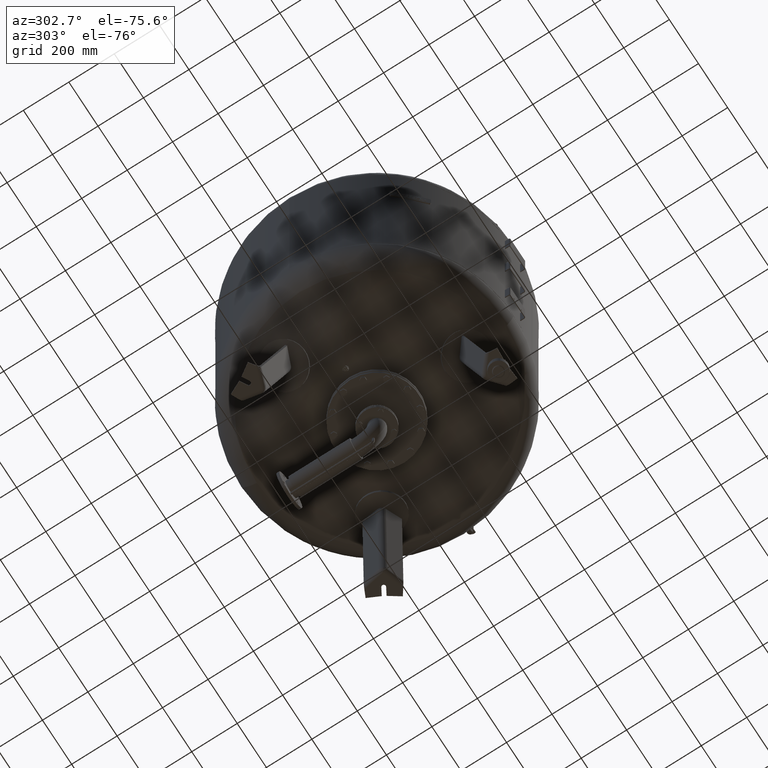
[diagram: clean part render]
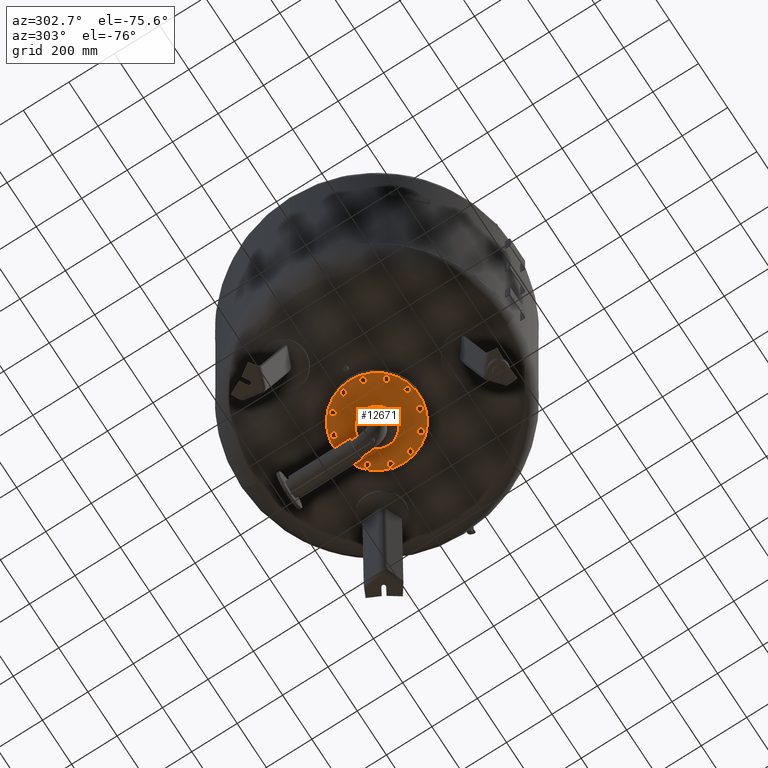
[diagram: same view with one face highlighted and labeled with its STEP entity id]
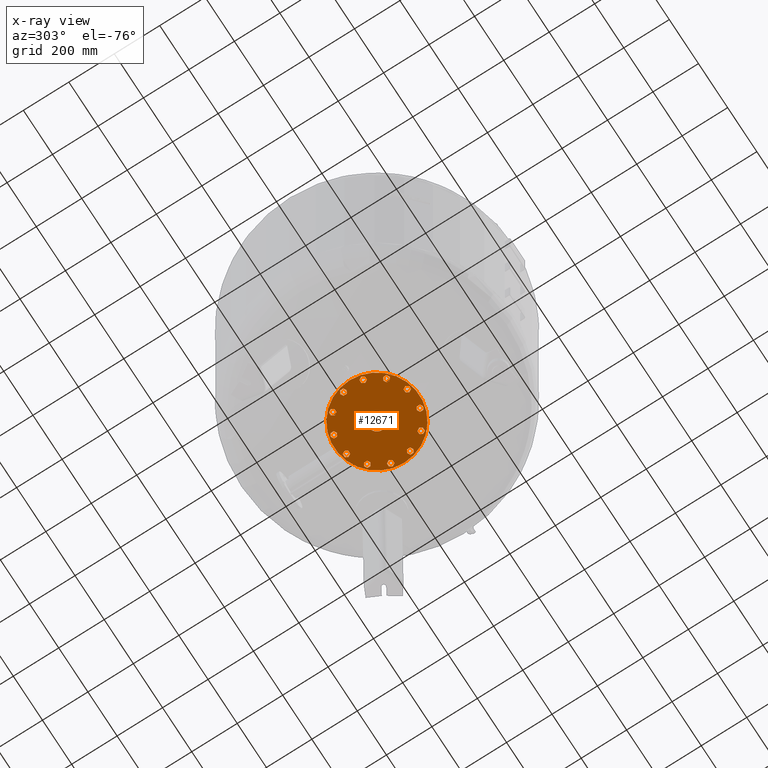
[diagram: x-ray of the same camera — body ghosted, the highlighted face saturated]
A machine part, auxiliary view. The second image highlights one B-rep face of the part: STEP entity #12671.
The next image is the same camera in x-ray: the body ghosted, the highlighted face saturated — about 0% of this face is hidden behind the body in this view.
In plain terms, the highlighted planar face has unit normal (0, 0, -1).
Its self-contained STEP definition (entity closure, byte-faithful):
#4815=CARTESIAN_POINT('',(-38.050000000000018,-4.163799E-015,383.0));
#4816=VERTEX_POINT('',#4815);
#4832=CARTESIAN_POINT('',(38.049999999999983,-8.823426E-015,383.0));
#4833=VERTEX_POINT('',#4832);
#4840=CARTESIAN_POINT('',(-8.604691E-015,-4.163799E-015,383.0));
#4841=DIRECTION('',(0.0,0.0,-1.0));
#4842=DIRECTION('',(-1.0,0.0,0.0));
#4843=AXIS2_PLACEMENT_3D('',#4840,#4841,#4842);
#4844=CIRCLE('',#4843,38.050000000000004);
#4845=EDGE_CURVE('',#4833,#4816,#4844,.T.);
#4855=CARTESIAN_POINT('',(-187.500000000000000,-4.163799E-015,383.000000000000110));
#4856=VERTEX_POINT('',#4855);
#4865=CARTESIAN_POINT('',(187.500000000000000,-2.712517E-014,383.000000000000110));
#4866=VERTEX_POINT('',#4865);
#4867=CARTESIAN_POINT('',(-8.604691E-015,-4.163799E-015,383.000000000000110));
#4868=DIRECTION('',(0.0,0.0,-1.0));
#4869=DIRECTION('',(-1.0,0.0,0.0));
#4870=AXIS2_PLACEMENT_3D('',#4867,#4868,#4869);
#4871=CIRCLE('',#4870,187.500000000000000);
#4872=EDGE_CURVE('',#4866,#4856,#4871,.T.);
#6845=CARTESIAN_POINT('',(43.352190054672320,-175.648982363969960,383.0));
#6846=VERTEX_POINT('',#6845);
#6847=CARTESIAN_POINT('',(55.352190054672313,-168.720779133694460,383.0));
#6848=VERTEX_POINT('',#6847);
#6849=CARTESIAN_POINT('',(43.352190054672320,-175.648982363969960,383.0));
#6850=DIRECTION('',(0.866025403784439,0.500000000000000,0.0));
#6851=VECTOR('',#6850,13.856406460551009);
#6852=LINE('',#6849,#6851);
#6853=EDGE_CURVE('',#6846,#6848,#6852,.T.);
#6885=CARTESIAN_POINT('',(31.352190054672334,-168.720779133694460,383.0));
#6886=VERTEX_POINT('',#6885);
#6887=CARTESIAN_POINT('',(31.352190054672334,-168.720779133694460,383.0));
#6888=DIRECTION('',(0.866025403784439,-0.500000000000000,0.0));
#6889=VECTOR('',#6888,13.856406460551002);
#6890=LINE('',#6887,#6889);
#6891=EDGE_CURVE('',#6886,#6846,#6890,.T.);
#6916=CARTESIAN_POINT('',(31.352190054672349,-154.864372673143440,383.0));
#6917=VERTEX_POINT('',#6916);
#6918=CARTESIAN_POINT('',(31.352190054672349,-154.864372673143440,383.0));
#6919=DIRECTION('',(0.0,-1.0,0.0));
#6920=VECTOR('',#6919,13.856406460551028);
#6921=LINE('',#6918,#6920);
#6922=EDGE_CURVE('',#6917,#6886,#6921,.T.);
#6947=CARTESIAN_POINT('',(43.352190054672320,-147.936169442867940,383.0));
#6948=VERTEX_POINT('',#6947);
#6949=CARTESIAN_POINT('',(43.352190054672320,-147.936169442867940,383.0));
#6950=DIRECTION('',(-0.866025403784438,-0.500000000000000,0.0));
#6951=VECTOR('',#6950,13.856406460550989);
#6952=LINE('',#6949,#6951);
#6953=EDGE_CURVE('',#6948,#6917,#6952,.T.);
#6978=CARTESIAN_POINT('',(55.352190054672313,-154.864372673143440,383.0));
#6979=VERTEX_POINT('',#6978);
#6980=CARTESIAN_POINT('',(55.352190054672313,-168.720779133694460,383.0));
#6981=DIRECTION('',(0.0,1.0,0.0));
#6982=VECTOR('',#6981,13.856406460551028);
#6983=LINE('',#6980,#6982);
#6984=EDGE_CURVE('',#6848,#6979,#6983,.T.);
#7009=CARTESIAN_POINT('',(55.352190054672313,-154.864372673143440,383.0));
#7010=DIRECTION('',(-0.866025403784439,0.500000000000000,0.0));
#7011=VECTOR('',#7010,13.856406460551009);
#7012=LINE('',#7009,#7011);
#7013=EDGE_CURVE('',#6979,#6948,#7012,.T.);
#7319=CARTESIAN_POINT('',(125.368589079022360,-130.440385848746640,383.0));
#7320=VERTEX_POINT('',#7319);
#7321=CARTESIAN_POINT('',(132.296792309297840,-118.440385848746640,383.0));
#7322=VERTEX_POINT('',#7321);
#7323=CARTESIAN_POINT('',(125.368589079022360,-130.440385848746640,383.0));
#7324=DIRECTION('',(0.499999999999999,0.866025403784439,0.0));
#7325=VECTOR('',#7324,13.856406460551007);
#7326=LINE('',#7323,#7325);
#7327=EDGE_CURVE('',#7320,#7322,#7326,.T.);
#7359=CARTESIAN_POINT('',(111.512182618471340,-130.440385848746640,383.0));
#7360=VERTEX_POINT('',#7359);
#7361=CARTESIAN_POINT('',(111.512182618471340,-130.440385848746640,383.0));
#7362=DIRECTION('',(1.0,0.0,0.0));
#7363=VECTOR('',#7362,13.856406460551014);
#7364=LINE('',#7361,#7363);
#7365=EDGE_CURVE('',#7360,#7320,#7364,.T.);
#7390=CARTESIAN_POINT('',(104.583979388195840,-118.440385848746660,383.0));
#7391=VERTEX_POINT('',#7390);
#7392=CARTESIAN_POINT('',(104.583979388195840,-118.440385848746660,383.0));
#7393=DIRECTION('',(0.500000000000000,-0.866025403784439,0.0));
#7394=VECTOR('',#7393,13.856406460551002);
#7395=LINE('',#7392,#7394);
#7396=EDGE_CURVE('',#7391,#7360,#7395,.T.);
#7421=CARTESIAN_POINT('',(111.512182618471340,-106.440385848746640,383.0));
#7422=VERTEX_POINT('',#7421);
#7423=CARTESIAN_POINT('',(111.512182618471340,-106.440385848746640,383.0));
#7424=DIRECTION('',(-0.499999999999999,-0.866025403784439,0.0));
#7425=VECTOR('',#7424,13.856406460551026);
#7426=LINE('',#7423,#7425);
#7427=EDGE_CURVE('',#7422,#7391,#7426,.T.);
#7452=CARTESIAN_POINT('',(125.368589079022340,-106.440385848746640,383.0));
#7453=VERTEX_POINT('',#7452);
#7454=CARTESIAN_POINT('',(132.296792309297840,-118.440385848746640,383.0));
#7455=DIRECTION('',(-0.500000000000000,0.866025403784439,0.0));
#7456=VECTOR('',#7455,13.856406460551014);
#7457=LINE('',#7454,#7456);
#7458=EDGE_CURVE('',#7322,#7453,#7457,.T.);
#7483=CARTESIAN_POINT('',(125.368589079022340,-106.440385848746640,383.0));
#7484=DIRECTION('',(-1.0,0.0,0.0));
#7485=VECTOR('',#7484,13.856406460551000);
#7486=LINE('',#7483,#7485);
#7487=EDGE_CURVE('',#7453,#7422,#7486,.T.);
#7793=CARTESIAN_POINT('',(173.792575903418990,-50.280393284947714,383.0));
#7794=VERTEX_POINT('',#7793);
#7795=CARTESIAN_POINT('',(173.792575903418990,-36.423986824396700,383.0));
#7796=VERTEX_POINT('',#7795);
#7797=CARTESIAN_POINT('',(173.792575903418990,-50.280393284947714,383.0));
#7798=DIRECTION('',(0.0,1.0,0.0));
#7799=VECTOR('',#7798,13.856406460551014);
#7800=LINE('',#7797,#7799);
#7801=EDGE_CURVE('',#7794,#7796,#7800,.T.);
#7833=CARTESIAN_POINT('',(161.792575903418990,-57.208596515223185,383.0));
#7834=VERTEX_POINT('',#7833);
#7835=CARTESIAN_POINT('',(161.792575903418990,-57.208596515223185,383.0));
#7836=DIRECTION('',(0.866025403784440,0.499999999999998,0.0));
#7837=VECTOR('',#7836,13.856406460551000);
#7838=LINE('',#7835,#7837);
#7839=EDGE_CURVE('',#7834,#7794,#7838,.T.);
#7864=CARTESIAN_POINT('',(149.792575903418990,-50.280393284947706,383.0));
#7865=VERTEX_POINT('',#7864);
#7866=CARTESIAN_POINT('',(149.792575903418990,-50.280393284947706,383.0));
#7867=DIRECTION('',(0.866025403784440,-0.499999999999998,0.0));
#7868=VECTOR('',#7867,13.856406460551003);
#7869=LINE('',#7866,#7868);
#7870=EDGE_CURVE('',#7865,#7834,#7869,.T.);
#7895=CARTESIAN_POINT('',(149.792575903419020,-36.423986824396692,383.0));
#7896=VERTEX_POINT('',#7895);
#7897=CARTESIAN_POINT('',(149.792575903419020,-36.423986824396692,383.0));
#7898=DIRECTION('',(0.0,-1.0,0.0));
#7899=VECTOR('',#7898,13.856406460551014);
#7900=LINE('',#7897,#7899);
#7901=EDGE_CURVE('',#7896,#7865,#7900,.T.);
#7926=CARTESIAN_POINT('',(161.792575903418990,-29.495783594121182,383.0));
#7927=VERTEX_POINT('',#7926);
#7928=CARTESIAN_POINT('',(173.792575903418990,-36.423986824396700,383.0));
#7929=DIRECTION('',(-0.866025403784438,0.500000000000000,0.0));
#7930=VECTOR('',#7929,13.856406460551023);
#7931=LINE('',#7928,#7930);
#7932=EDGE_CURVE('',#7796,#7927,#7931,.T.);
#7957=CARTESIAN_POINT('',(161.792575903418990,-29.495783594121182,383.0));
#7958=DIRECTION('',(-0.866025403784438,-0.500000000000001,0.0));
#7959=VECTOR('',#7958,13.856406460550994);
#7960=LINE('',#7957,#7959);
#7961=EDGE_CURVE('',#7927,#7896,#7960,.T.);
#8267=CARTESIAN_POINT('',(175.648982363969960,43.352190054672327,383.0));
#8268=VERTEX_POINT('',#8267);
#8269=CARTESIAN_POINT('',(168.720779133694460,55.352190054672320,383.0));
#8270=VERTEX_POINT('',#8269);
#8271=CARTESIAN_POINT('',(175.648982363969960,43.352190054672327,383.0));
#8272=DIRECTION('',(-0.500000000000000,0.866025403784439,0.0));
#8273=VECTOR('',#8272,13.856406460551009);
#8274=LINE('',#8271,#8273);
#8275=EDGE_CURVE('',#8268,#8270,#8274,.T.);
#8307=CARTESIAN_POINT('',(168.720779133694460,31.352190054672338,383.0));
#8308=VERTEX_POINT('',#8307);
#8309=CARTESIAN_POINT('',(168.720779133694460,31.352190054672338,383.0));
#8310=DIRECTION('',(0.500000000000000,0.866025403784439,0.0));
#8311=VECTOR('',#8310,13.856406460551003);
#8312=LINE('',#8309,#8311);
#8313=EDGE_CURVE('',#8308,#8268,#8312,.T.);
#8338=CARTESIAN_POINT('',(154.864372673143440,31.352190054672352,383.0));
#8339=VERTEX_POINT('',#8338);
#8340=CARTESIAN_POINT('',(154.864372673143440,31.352190054672352,383.0));
#8341=DIRECTION('',(1.0,0.0,0.0));
#8342=VECTOR('',#8341,13.856406460551028);
#8343=LINE('',#8340,#8342);
#8344=EDGE_CURVE('',#8339,#8308,#8343,.T.);
#8369=CARTESIAN_POINT('',(147.936169442867940,43.352190054672327,383.0));
#8370=VERTEX_POINT('',#8369);
#8371=CARTESIAN_POINT('',(147.936169442867940,43.352190054672327,383.0));
#8372=DIRECTION('',(0.500000000000000,-0.866025403784439,0.0));
#8373=VECTOR('',#8372,13.856406460550991);
#8374=LINE('',#8371,#8373);
#8375=EDGE_CURVE('',#8370,#8339,#8374,.T.);
#8400=CARTESIAN_POINT('',(154.864372673143440,55.352190054672320,383.0));
#8401=VERTEX_POINT('',#8400);
#8402=CARTESIAN_POINT('',(168.720779133694460,55.352190054672320,383.0));
#8403=DIRECTION('',(-1.0,0.0,0.0));
#8404=VECTOR('',#8403,13.856406460551028);
#8405=LINE('',#8402,#8404);
#8406=EDGE_CURVE('',#8270,#8401,#8405,.T.);
#8431=CARTESIAN_POINT('',(154.864372673143440,55.352190054672320,383.0));
#8432=DIRECTION('',(-0.500000000000000,-0.866025403784439,0.0));
#8433=VECTOR('',#8432,13.856406460551009);
#8434=LINE('',#8431,#8433);
#8435=EDGE_CURVE('',#8401,#8370,#8434,.T.);
#8741=CARTESIAN_POINT('',(130.440385848746670,125.368589079022270,383.0));
#8742=VERTEX_POINT('',#8741);
#8743=CARTESIAN_POINT('',(118.440385848746690,132.296792309297790,383.0));
#8744=VERTEX_POINT('',#8743);
#8745=CARTESIAN_POINT('',(130.440385848746670,125.368589079022270,383.0));
#8746=DIRECTION('',(-0.866025403784438,0.500000000000001,0.0));
#8747=VECTOR('',#8746,13.856406460551009);
#8748=LINE('',#8745,#8747);
#8749=EDGE_CURVE('',#8742,#8744,#8748,.T.);
#8781=CARTESIAN_POINT('',(130.440385848746670,111.512182618471270,383.0));
#8782=VERTEX_POINT('',#8781);
#8783=CARTESIAN_POINT('',(130.440385848746670,111.512182618471270,383.0));
#8784=DIRECTION('',(0.0,1.0,0.0));
#8785=VECTOR('',#8784,13.856406460551000);
#8786=LINE('',#8783,#8785);
#8787=EDGE_CURVE('',#8782,#8742,#8786,.T.);
#8812=CARTESIAN_POINT('',(118.440385848746700,104.583979388195790,383.0));
#8813=VERTEX_POINT('',#8812);
#8814=CARTESIAN_POINT('',(118.440385848746700,104.583979388195790,383.0));
#8815=DIRECTION('',(0.866025403784439,0.500000000000000,0.0));
#8816=VECTOR('',#8815,13.856406460550982);
#8817=LINE('',#8814,#8816);
#8818=EDGE_CURVE('',#8813,#8782,#8817,.T.);
#8843=CARTESIAN_POINT('',(106.440385848746700,111.512182618471290,383.0));
#8844=VERTEX_POINT('',#8843);
#8845=CARTESIAN_POINT('',(106.440385848746700,111.512182618471290,383.0));
#8846=DIRECTION('',(0.866025403784439,-0.500000000000000,0.0));
#8847=VECTOR('',#8846,13.856406460551014);
#8848=LINE('',#8845,#8847);
#8849=EDGE_CURVE('',#8844,#8813,#8848,.T.);
#8874=CARTESIAN_POINT('',(106.440385848746700,125.368589079022270,383.0));
#8875=VERTEX_POINT('',#8874);
#8876=CARTESIAN_POINT('',(118.440385848746690,132.296792309297790,383.0));
#8877=DIRECTION('',(-0.866025403784438,-0.500000000000001,0.0));
#8878=VECTOR('',#8877,13.856406460551009);
#8879=LINE('',#8876,#8878);
#8880=EDGE_CURVE('',#8744,#8875,#8879,.T.);
#8905=CARTESIAN_POINT('',(106.440385848746700,125.368589079022270,383.0));
#8906=DIRECTION('',(0.0,-1.0,0.0));
#8907=VECTOR('',#8906,13.856406460550986);
#8908=LINE('',#8905,#8907);
#8909=EDGE_CURVE('',#8875,#8844,#8908,.T.);
#9215=CARTESIAN_POINT('',(50.280393284947706,173.792575903418990,383.0));
#9216=VERTEX_POINT('',#9215);
#9217=CARTESIAN_POINT('',(36.423986824396678,173.792575903418940,383.0));
#9218=VERTEX_POINT('',#9217);
#9219=CARTESIAN_POINT('',(50.280393284947706,173.792575903418990,383.0));
#9220=DIRECTION('',(-1.0,0.0,0.0));
#9221=VECTOR('',#9220,13.856406460551028);
#9222=LINE('',#9219,#9221);
#9223=EDGE_CURVE('',#9216,#9218,#9222,.T.);
#9255=CARTESIAN_POINT('',(57.208596515223178,161.792575903418990,383.0));
#9256=VERTEX_POINT('',#9255);
#9257=CARTESIAN_POINT('',(57.208596515223178,161.792575903418990,383.0));
#9258=DIRECTION('',(-0.499999999999998,0.866025403784440,0.0));
#9259=VECTOR('',#9258,13.856406460551000);
#9260=LINE('',#9257,#9259);
#9261=EDGE_CURVE('',#9256,#9216,#9260,.T.);
#9286=CARTESIAN_POINT('',(50.280393284947692,149.792575903418990,383.0));
#9287=VERTEX_POINT('',#9286);
#9288=CARTESIAN_POINT('',(50.280393284947692,149.792575903418990,383.0));
#9289=DIRECTION('',(0.499999999999999,0.866025403784439,0.0));
#9290=VECTOR('',#9289,13.856406460551007);
#9291=LINE('',#9288,#9290);
#9292=EDGE_CURVE('',#9287,#9256,#9291,.T.);
#9317=CARTESIAN_POINT('',(36.423986824396678,149.792575903418990,383.0));
#9318=VERTEX_POINT('',#9317);
#9319=CARTESIAN_POINT('',(36.423986824396678,149.792575903418990,383.0));
#9320=DIRECTION('',(1.0,0.0,0.0));
#9321=VECTOR('',#9320,13.856406460551014);
#9322=LINE('',#9319,#9321);
#9323=EDGE_CURVE('',#9318,#9287,#9322,.T.);
#9348=CARTESIAN_POINT('',(29.495783594121185,161.792575903418990,383.0));
#9349=VERTEX_POINT('',#9348);
#9350=CARTESIAN_POINT('',(36.423986824396678,173.792575903418940,383.0));
#9351=DIRECTION('',(-0.500000000000001,-0.866025403784438,0.0));
#9352=VECTOR('',#9351,13.856406460550961);
#9353=LINE('',#9350,#9352);
#9354=EDGE_CURVE('',#9218,#9349,#9353,.T.);
#9379=CARTESIAN_POINT('',(29.495783594121185,161.792575903418990,383.0));
#9380=DIRECTION('',(0.499999999999999,-0.866025403784439,0.0));
#9381=VECTOR('',#9380,13.856406460551010);
#9382=LINE('',#9379,#9381);
#9383=EDGE_CURVE('',#9349,#9318,#9382,.T.);
#9689=CARTESIAN_POINT('',(-43.352190054672327,175.648982363969990,383.0));
#9690=VERTEX_POINT('',#9689);
#9691=CARTESIAN_POINT('',(-55.352190054672306,168.720779133694460,383.0));
#9692=VERTEX_POINT('',#9691);
#9693=CARTESIAN_POINT('',(-43.352190054672327,175.648982363969990,383.0));
#9694=DIRECTION('',(-0.866025403784438,-0.500000000000002,0.0));
#9695=VECTOR('',#9694,13.856406460551009);
#9696=LINE('',#9693,#9695);
#9697=EDGE_CURVE('',#9690,#9692,#9696,.T.);
#9729=CARTESIAN_POINT('',(-31.352190054672313,168.720779133694490,383.0));
#9730=VERTEX_POINT('',#9729);
#9731=CARTESIAN_POINT('',(-31.352190054672313,168.720779133694490,383.0));
#9732=DIRECTION('',(-0.866025403784439,0.499999999999999,0.0));
#9733=VECTOR('',#9732,13.856406460551026);
#9734=LINE('',#9731,#9733);
#9735=EDGE_CURVE('',#9730,#9690,#9734,.T.);
#9760=CARTESIAN_POINT('',(-31.352190054672327,154.864372673143460,383.0));
#9761=VERTEX_POINT('',#9760);
#9762=CARTESIAN_POINT('',(-31.352190054672327,154.864372673143460,383.0));
#9763=DIRECTION('',(0.0,1.0,0.0));
#9764=VECTOR('',#9763,13.856406460551028);
#9765=LINE('',#9762,#9764);
#9766=EDGE_CURVE('',#9761,#9730,#9765,.T.);
#9791=CARTESIAN_POINT('',(-43.352190054672334,147.936169442867940,383.0));
#9792=VERTEX_POINT('',#9791);
#9793=CARTESIAN_POINT('',(-43.352190054672334,147.936169442867940,383.0));
#9794=DIRECTION('',(0.866025403784438,0.500000000000001,0.0));
#9795=VECTOR('',#9794,13.856406460551034);
#9796=LINE('',#9793,#9795);
#9797=EDGE_CURVE('',#9792,#9761,#9796,.T.);
#9822=CARTESIAN_POINT('',(-55.352190054672306,154.864372673143460,383.0));
#9823=VERTEX_POINT('',#9822);
#9824=CARTESIAN_POINT('',(-55.352190054672306,168.720779133694460,383.0));
#9825=DIRECTION('',(0.0,-1.0,0.0));
#9826=VECTOR('',#9825,13.856406460551000);
#9827=LINE('',#9824,#9826);
#9828=EDGE_CURVE('',#9692,#9823,#9827,.T.);
#9853=CARTESIAN_POINT('',(-55.352190054672306,154.864372673143460,383.0));
#9854=DIRECTION('',(0.866025403784437,-0.500000000000002,0.0));
#9855=VECTOR('',#9854,13.856406460551003);
#9856=LINE('',#9853,#9855);
#9857=EDGE_CURVE('',#9823,#9792,#9856,.T.);
#10163=CARTESIAN_POINT('',(-125.368589079022270,130.440385848746700,383.0));
#10164=VERTEX_POINT('',#10163);
#10165=CARTESIAN_POINT('',(-132.296792309297790,118.440385848746690,383.0));
#10166=VERTEX_POINT('',#10165);
#10167=CARTESIAN_POINT('',(-125.368589079022270,130.440385848746700,383.0));
#10168=DIRECTION('',(-0.500000000000000,-0.866025403784439,0.0));
#10169=VECTOR('',#10168,13.856406460551034);
#10170=LINE('',#10167,#10169);
#10171=EDGE_CURVE('',#10164,#10166,#10170,.T.);
#10203=CARTESIAN_POINT('',(-111.512182618471270,130.440385848746670,383.0));
#10204=VERTEX_POINT('',#10203);
#10205=CARTESIAN_POINT('',(-111.512182618471270,130.440385848746670,383.0));
#10206=DIRECTION('',(-1.0,0.0,0.0));
#10207=VECTOR('',#10206,13.856406460551000);
#10208=LINE('',#10205,#10207);
#10209=EDGE_CURVE('',#10204,#10164,#10208,.T.);
#10234=CARTESIAN_POINT('',(-104.583979388195760,118.440385848746690,383.0));
#10235=VERTEX_POINT('',#10234);
#10236=CARTESIAN_POINT('',(-104.583979388195760,118.440385848746690,383.0));
#10237=DIRECTION('',(-0.500000000000001,0.866025403784438,0.0));
#10238=VECTOR('',#10237,13.856406460551009);
#10239=LINE('',#10236,#10238);
#10240=EDGE_CURVE('',#10235,#10204,#10239,.T.);
#10265=CARTESIAN_POINT('',(-111.512182618471270,106.440385848746700,383.0));
#10266=VERTEX_POINT('',#10265);
#10267=CARTESIAN_POINT('',(-111.512182618471270,106.440385848746700,383.0));
#10268=DIRECTION('',(0.500000000000001,0.866025403784438,0.0));
#10269=VECTOR('',#10268,13.856406460551009);
#10270=LINE('',#10267,#10269);
#10271=EDGE_CURVE('',#10266,#10235,#10270,.T.);
#10296=CARTESIAN_POINT('',(-125.368589079022270,106.440385848746700,383.0));
#10297=VERTEX_POINT('',#10296);
#10298=CARTESIAN_POINT('',(-132.296792309297790,118.440385848746690,383.0));
#10299=DIRECTION('',(0.500000000000001,-0.866025403784438,0.0));
#10300=VECTOR('',#10299,13.856406460551009);
#10301=LINE('',#10298,#10300);
#10302=EDGE_CURVE('',#10166,#10297,#10301,.T.);
#10327=CARTESIAN_POINT('',(-125.368589079022270,106.440385848746700,383.0));
#10328=DIRECTION('',(1.0,0.0,0.0));
#10329=VECTOR('',#10328,13.856406460551000);
#10330=LINE('',#10327,#10329);
#10331=EDGE_CURVE('',#10297,#10266,#10330,.T.);
#10637=CARTESIAN_POINT('',(-173.792575903418960,50.280393284947714,383.0));
#10638=VERTEX_POINT('',#10637);
#10639=CARTESIAN_POINT('',(-173.792575903418960,36.423986824396714,383.0));
#10640=VERTEX_POINT('',#10639);
#10641=CARTESIAN_POINT('',(-173.792575903418960,50.280393284947714,383.0));
#10642=DIRECTION('',(0.0,-1.0,0.0));
#10643=VECTOR('',#10642,13.856406460551000);
#10644=LINE('',#10641,#10643);
#10645=EDGE_CURVE('',#10638,#10640,#10644,.T.);
#10677=CARTESIAN_POINT('',(-161.792575903419020,57.208596515223206,383.0));
#10678=VERTEX_POINT('',#10677);
#10679=CARTESIAN_POINT('',(-161.792575903419020,57.208596515223206,383.0));
#10680=DIRECTION('',(-0.866025403784438,-0.500000000000001,0.0));
#10681=VECTOR('',#10680,13.856406460550961);
#10682=LINE('',#10679,#10681);
#10683=EDGE_CURVE('',#10678,#10638,#10682,.T.);
#10708=CARTESIAN_POINT('',(-149.792575903418990,50.280393284947714,383.0));
#10709=VERTEX_POINT('',#10708);
#10710=CARTESIAN_POINT('',(-149.792575903418990,50.280393284947714,383.0));
#10711=DIRECTION('',(-0.866025403784440,0.499999999999998,0.0));
#10712=VECTOR('',#10711,13.856406460551035);
#10713=LINE('',#10710,#10712);
#10714=EDGE_CURVE('',#10709,#10678,#10713,.T.);
#10739=CARTESIAN_POINT('',(-149.792575903418990,36.423986824396685,383.0));
#10740=VERTEX_POINT('',#10739);
#10741=CARTESIAN_POINT('',(-149.792575903418990,36.423986824396685,383.0));
#10742=DIRECTION('',(0.0,1.0,0.0));
#10743=VECTOR('',#10742,13.856406460551028);
#10744=LINE('',#10741,#10743);
#10745=EDGE_CURVE('',#10740,#10709,#10744,.T.);
#10770=CARTESIAN_POINT('',(-161.792575903418990,29.495783594121210,383.0));
#10771=VERTEX_POINT('',#10770);
#10772=CARTESIAN_POINT('',(-173.792575903418960,36.423986824396714,383.0));
#10773=DIRECTION('',(0.866025403784438,-0.500000000000001,0.0));
#10774=VECTOR('',#10773,13.856406460550991);
#10775=LINE('',#10772,#10774);
#10776=EDGE_CURVE('',#10640,#10771,#10775,.T.);
#10801=CARTESIAN_POINT('',(-161.792575903418990,29.495783594121210,383.0));
#10802=DIRECTION('',(0.866025403784440,0.499999999999998,0.0));
#10803=VECTOR('',#10802,13.856406460551002);
#10804=LINE('',#10801,#10803);
#10805=EDGE_CURVE('',#10771,#10740,#10804,.T.);
#11111=CARTESIAN_POINT('',(-175.648982363969990,-43.352190054672270,383.0));
#11112=VERTEX_POINT('',#11111);
#11113=CARTESIAN_POINT('',(-168.720779133694490,-55.352190054672263,383.0));
#11114=VERTEX_POINT('',#11113);
#11115=CARTESIAN_POINT('',(-175.648982363969990,-43.352190054672270,383.0));
#11116=DIRECTION('',(0.500000000000000,-0.866025403784439,0.0));
#11117=VECTOR('',#11116,13.856406460551009);
#11118=LINE('',#11115,#11117);
#11119=EDGE_CURVE('',#11112,#11114,#11118,.T.);
#11151=CARTESIAN_POINT('',(-168.720779133694490,-31.352190054672281,383.0));
#11152=VERTEX_POINT('',#11151);
#11153=CARTESIAN_POINT('',(-168.720779133694490,-31.352190054672281,383.0));
#11154=DIRECTION('',(-0.500000000000000,-0.866025403784439,0.0));
#11155=VECTOR('',#11154,13.856406460551003);
#11156=LINE('',#11153,#11155);
#11157=EDGE_CURVE('',#11152,#11112,#11156,.T.);
#11182=CARTESIAN_POINT('',(-154.864372673143460,-31.352190054672299,383.0));
#11183=VERTEX_POINT('',#11182);
#11184=CARTESIAN_POINT('',(-154.864372673143460,-31.352190054672299,383.0));
#11185=DIRECTION('',(-1.0,0.0,0.0));
#11186=VECTOR('',#11185,13.856406460551028);
#11187=LINE('',#11184,#11186);
#11188=EDGE_CURVE('',#11183,#11152,#11187,.T.);
#11213=CARTESIAN_POINT('',(-147.936169442867960,-43.352190054672299,383.0));
#11214=VERTEX_POINT('',#11213);
#11215=CARTESIAN_POINT('',(-147.936169442867960,-43.352190054672299,383.0));
#11216=DIRECTION('',(-0.500000000000000,0.866025403784439,0.0));
#11217=VECTOR('',#11216,13.856406460551014);
#11218=LINE('',#11215,#11217);
#11219=EDGE_CURVE('',#11214,#11183,#11218,.T.);
#11244=CARTESIAN_POINT('',(-154.864372673143460,-55.352190054672263,383.0));
#11245=VERTEX_POINT('',#11244);
#11246=CARTESIAN_POINT('',(-168.720779133694490,-55.352190054672263,383.0));
#11247=DIRECTION('',(1.0,0.0,0.0));
#11248=VECTOR('',#11247,13.856406460551028);
#11249=LINE('',#11246,#11248);
#11250=EDGE_CURVE('',#11114,#11245,#11249,.T.);
#11275=CARTESIAN_POINT('',(-154.864372673143460,-55.352190054672263,383.0));
#11276=DIRECTION('',(0.500000000000001,0.866025403784438,0.0));
#11277=VECTOR('',#11276,13.856406460550984);
#11278=LINE('',#11275,#11277);
#11279=EDGE_CURVE('',#11245,#11214,#11278,.T.);
#11585=CARTESIAN_POINT('',(-130.440385848746730,-125.368589079022260,383.0));
#11586=VERTEX_POINT('',#11585);
#11587=CARTESIAN_POINT('',(-118.440385848746730,-132.296792309297760,383.0));
#11588=VERTEX_POINT('',#11587);
#11589=CARTESIAN_POINT('',(-130.440385848746730,-125.368589079022260,383.0));
#11590=DIRECTION('',(0.866025403784439,-0.500000000000000,0.0));
#11591=VECTOR('',#11590,13.856406460551014);
#11592=LINE('',#11589,#11591);
#11593=EDGE_CURVE('',#11586,#11588,#11592,.T.);
#11625=CARTESIAN_POINT('',(-130.440385848746700,-111.512182618471260,383.0));
#11626=VERTEX_POINT('',#11625);
#11627=CARTESIAN_POINT('',(-130.440385848746700,-111.512182618471260,383.0));
#11628=DIRECTION('',(0.0,-1.0,0.0));
#11629=VECTOR('',#11628,13.856406460551000);
#11630=LINE('',#11627,#11629);
#11631=EDGE_CURVE('',#11626,#11586,#11630,.T.);
#11656=CARTESIAN_POINT('',(-118.440385848746700,-104.583979388195760,383.0));
#11657=VERTEX_POINT('',#11656);
#11658=CARTESIAN_POINT('',(-118.440385848746700,-104.583979388195760,383.0));
#11659=DIRECTION('',(-0.866025403784439,-0.500000000000000,0.0));
#11660=VECTOR('',#11659,13.856406460551014);
#11661=LINE('',#11658,#11660);
#11662=EDGE_CURVE('',#11657,#11626,#11661,.T.);
#11687=CARTESIAN_POINT('',(-106.440385848746710,-111.512182618471270,383.0));
#11688=VERTEX_POINT('',#11687);
#11689=CARTESIAN_POINT('',(-106.440385848746710,-111.512182618471270,383.0));
#11690=DIRECTION('',(-0.866025403784438,0.500000000000001,0.0));
#11691=VECTOR('',#11690,13.856406460551009);
#11692=LINE('',#11689,#11691);
#11693=EDGE_CURVE('',#11688,#11657,#11692,.T.);
#11718=CARTESIAN_POINT('',(-106.440385848746710,-125.368589079022260,383.0));
#11719=VERTEX_POINT('',#11718);
#11720=CARTESIAN_POINT('',(-118.440385848746730,-132.296792309297760,383.0));
#11721=DIRECTION('',(0.866025403784439,0.499999999999999,0.0));
#11722=VECTOR('',#11721,13.856406460551026);
#11723=LINE('',#11720,#11722);
#11724=EDGE_CURVE('',#11588,#11719,#11723,.T.);
#11749=CARTESIAN_POINT('',(-106.440385848746710,-125.368589079022260,383.0));
#11750=DIRECTION('',(0.0,1.0,0.0));
#11751=VECTOR('',#11750,13.856406460550986);
#11752=LINE('',#11749,#11751);
#11753=EDGE_CURVE('',#11719,#11688,#11752,.T.);
#12355=CARTESIAN_POINT('',(-50.280393284947756,-173.792575903418960,383.0));
#12356=VERTEX_POINT('',#12355);
#12357=CARTESIAN_POINT('',(-36.423986824396742,-173.792575903418960,383.0));
#12358=VERTEX_POINT('',#12357);
#12359=CARTESIAN_POINT('',(-50.280393284947756,-173.792575903418960,383.0));
#12360=DIRECTION('',(1.0,0.0,0.0));
#12361=VECTOR('',#12360,13.856406460551014);
#12362=LINE('',#12359,#12361);
#12363=EDGE_CURVE('',#12356,#12358,#12362,.T.);
#12395=CARTESIAN_POINT('',(-57.208596515223249,-161.792575903418990,383.0));
#12396=VERTEX_POINT('',#12395);
#12397=CARTESIAN_POINT('',(-57.208596515223249,-161.792575903418990,383.0));
#12398=DIRECTION('',(0.500000000000000,-0.866025403784439,0.0));
#12399=VECTOR('',#12398,13.856406460550986);
#12400=LINE('',#12397,#12399);
#12401=EDGE_CURVE('',#12396,#12356,#12400,.T.);
#12426=CARTESIAN_POINT('',(-50.280393284947735,-149.792575903418990,383.0));
#12427=VERTEX_POINT('',#12426);
#12428=CARTESIAN_POINT('',(-50.280393284947735,-149.792575903418990,383.0));
#12429=DIRECTION('',(-0.500000000000000,-0.866025403784438,0.0));
#12430=VECTOR('',#12429,13.856406460551021);
#12431=LINE('',#12428,#12430);
#12432=EDGE_CURVE('',#12427,#12396,#12431,.T.);
#12457=CARTESIAN_POINT('',(-36.423986824396721,-149.792575903418990,383.0));
#12458=VERTEX_POINT('',#12457);
#12459=CARTESIAN_POINT('',(-36.423986824396721,-149.792575903418990,383.0));
#12460=DIRECTION('',(-1.0,0.0,0.0));
#12461=VECTOR('',#12460,13.856406460551014);
#12462=LINE('',#12459,#12461);
#12463=EDGE_CURVE('',#12458,#12427,#12462,.T.);
#12488=CARTESIAN_POINT('',(-29.495783594121228,-161.792575903418990,383.0));
#12489=VERTEX_POINT('',#12488);
#12490=CARTESIAN_POINT('',(-36.423986824396742,-173.792575903418960,383.0));
#12491=DIRECTION('',(0.500000000000001,0.866025403784438,0.0));
#12492=VECTOR('',#12491,13.856406460550996);
#12493=LINE('',#12490,#12492);
#12494=EDGE_CURVE('',#12358,#12489,#12493,.T.);
#12519=CARTESIAN_POINT('',(-29.495783594121228,-161.792575903418990,383.0));
#12520=DIRECTION('',(-0.499999999999999,0.866025403784439,0.0));
#12521=VECTOR('',#12520,13.856406460551010);
#12522=LINE('',#12519,#12521);
#12523=EDGE_CURVE('',#12489,#12458,#12522,.T.);
#12550=CARTESIAN_POINT('',(-19.025000000000009,-4.163799E-015,383.0));
#12551=DIRECTION('',(0.0,0.0,-1.0));
#12552=DIRECTION('',(0.0,-1.0,0.0));
#12553=AXIS2_PLACEMENT_3D('',#12550,#12551,#12552);
#12554=PLANE('',#12553);
#12555=CARTESIAN_POINT('',(-8.604691E-015,-4.163799E-015,383.000000000000110));
#12556=DIRECTION('',(0.0,0.0,-1.0));
#12557=DIRECTION('',(-1.0,0.0,0.0));
#12558=AXIS2_PLACEMENT_3D('',#12555,#12556,#12557);
#12559=CIRCLE('',#12558,187.500000000000000);
#12560=EDGE_CURVE('',#4856,#4866,#12559,.T.);
#12561=ORIENTED_EDGE('',*,*,#12560,.T.);
#12562=ORIENTED_EDGE('',*,*,#4872,.T.);
#12563=EDGE_LOOP('',(#12561,#12562));
#12564=FACE_OUTER_BOUND('',#12563,.T.);
#12565=ORIENTED_EDGE('',*,*,#6853,.T.);
#12566=ORIENTED_EDGE('',*,*,#6984,.T.);
#12567=ORIENTED_EDGE('',*,*,#7013,.T.);
#12568=ORIENTED_EDGE('',*,*,#6953,.T.);
#12569=ORIENTED_EDGE('',*,*,#6922,.T.);
#12570=ORIENTED_EDGE('',*,*,#6891,.T.);
#12571=EDGE_LOOP('',(#12565,#12566,#12567,#12568,#12569,#12570));
#12572=FACE_BOUND('',#12571,.T.);
#12573=ORIENTED_EDGE('',*,*,#7327,.T.);
#12574=ORIENTED_EDGE('',*,*,#7458,.T.);
#12575=ORIENTED_EDGE('',*,*,#7487,.T.);
#12576=ORIENTED_EDGE('',*,*,#7427,.T.);
#12577=ORIENTED_EDGE('',*,*,#7396,.T.);
#12578=ORIENTED_EDGE('',*,*,#7365,.T.);
#12579=EDGE_LOOP('',(#12573,#12574,#12575,#12576,#12577,#12578));
#12580=FACE_BOUND('',#12579,.T.);
#12581=ORIENTED_EDGE('',*,*,#7801,.T.);
#12582=ORIENTED_EDGE('',*,*,#7932,.T.);
#12583=ORIENTED_EDGE('',*,*,#7961,.T.);
#12584=ORIENTED_EDGE('',*,*,#7901,.T.);
#12585=ORIENTED_EDGE('',*,*,#7870,.T.);
#12586=ORIENTED_EDGE('',*,*,#7839,.T.);
#12587=EDGE_LOOP('',(#12581,#12582,#12583,#12584,#12585,#12586));
#12588=FACE_BOUND('',#12587,.T.);
#12589=ORIENTED_EDGE('',*,*,#8275,.T.);
#12590=ORIENTED_EDGE('',*,*,#8406,.T.);
#12591=ORIENTED_EDGE('',*,*,#8435,.T.);
#12592=ORIENTED_EDGE('',*,*,#8375,.T.);
#12593=ORIENTED_EDGE('',*,*,#8344,.T.);
#12594=ORIENTED_EDGE('',*,*,#8313,.T.);
#12595=EDGE_LOOP('',(#12589,#12590,#12591,#12592,#12593,#12594));
#12596=FACE_BOUND('',#12595,.T.);
#12597=ORIENTED_EDGE('',*,*,#8749,.T.);
#12598=ORIENTED_EDGE('',*,*,#8880,.T.);
#12599=ORIENTED_EDGE('',*,*,#8909,.T.);
#12600=ORIENTED_EDGE('',*,*,#8849,.T.);
#12601=ORIENTED_EDGE('',*,*,#8818,.T.);
#12602=ORIENTED_EDGE('',*,*,#8787,.T.);
#12603=EDGE_LOOP('',(#12597,#12598,#12599,#12600,#12601,#12602));
#12604=FACE_BOUND('',#12603,.T.);
#12605=ORIENTED_EDGE('',*,*,#9223,.T.);
#12606=ORIENTED_EDGE('',*,*,#9354,.T.);
#12607=ORIENTED_EDGE('',*,*,#9383,.T.);
#12608=ORIENTED_EDGE('',*,*,#9323,.T.);
#12609=ORIENTED_EDGE('',*,*,#9292,.T.);
#12610=ORIENTED_EDGE('',*,*,#9261,.T.);
#12611=EDGE_LOOP('',(#12605,#12606,#12607,#12608,#12609,#12610));
#12612=FACE_BOUND('',#12611,.T.);
#12613=ORIENTED_EDGE('',*,*,#9697,.T.);
#12614=ORIENTED_EDGE('',*,*,#9828,.T.);
#12615=ORIENTED_EDGE('',*,*,#9857,.T.);
#12616=ORIENTED_EDGE('',*,*,#9797,.T.);
#12617=ORIENTED_EDGE('',*,*,#9766,.T.);
#12618=ORIENTED_EDGE('',*,*,#9735,.T.);
#12619=EDGE_LOOP('',(#12613,#12614,#12615,#12616,#12617,#12618));
#12620=FACE_BOUND('',#12619,.T.);
#12621=ORIENTED_EDGE('',*,*,#10171,.T.);
#12622=ORIENTED_EDGE('',*,*,#10302,.T.);
#12623=ORIENTED_EDGE('',*,*,#10331,.T.);
#12624=ORIENTED_EDGE('',*,*,#10271,.T.);
#12625=ORIENTED_EDGE('',*,*,#10240,.T.);
#12626=ORIENTED_EDGE('',*,*,#10209,.T.);
#12627=EDGE_LOOP('',(#12621,#12622,#12623,#12624,#12625,#12626));
#12628=FACE_BOUND('',#12627,.T.);
#12629=ORIENTED_EDGE('',*,*,#10645,.T.);
#12630=ORIENTED_EDGE('',*,*,#10776,.T.);
#12631=ORIENTED_EDGE('',*,*,#10805,.T.);
#12632=ORIENTED_EDGE('',*,*,#10745,.T.);
#12633=ORIENTED_EDGE('',*,*,#10714,.T.);
#12634=ORIENTED_EDGE('',*,*,#10683,.T.);
#12635=EDGE_LOOP('',(#12629,#12630,#12631,#12632,#12633,#12634));
#12636=FACE_BOUND('',#12635,.T.);
#12637=ORIENTED_EDGE('',*,*,#11119,.T.);
#12638=ORIENTED_EDGE('',*,*,#11250,.T.);
#12639=ORIENTED_EDGE('',*,*,#11279,.T.);
#12640=ORIENTED_EDGE('',*,*,#11219,.T.);
#12641=ORIENTED_EDGE('',*,*,#11188,.T.);
#12642=ORIENTED_EDGE('',*,*,#11157,.T.);
#12643=EDGE_LOOP('',(#12637,#12638,#12639,#12640,#12641,#12642));
#12644=FACE_BOUND('',#12643,.T.);
#12645=ORIENTED_EDGE('',*,*,#11593,.T.);
#12646=ORIENTED_EDGE('',*,*,#11724,.T.);
#12647=ORIENTED_EDGE('',*,*,#11753,.T.);
#12648=ORIENTED_EDGE('',*,*,#11693,.T.);
#12649=ORIENTED_EDGE('',*,*,#11662,.T.);
#12650=ORIENTED_EDGE('',*,*,#11631,.T.);
#12651=EDGE_LOOP('',(#12645,#12646,#12647,#12648,#12649,#12650));
#12652=FACE_BOUND('',#12651,.T.);
#12653=ORIENTED_EDGE('',*,*,#12363,.T.);
#12654=ORIENTED_EDGE('',*,*,#12494,.T.);
#12655=ORIENTED_EDGE('',*,*,#12523,.T.);
#12656=ORIENTED_EDGE('',*,*,#12463,.T.);
#12657=ORIENTED_EDGE('',*,*,#12432,.T.);
#12658=ORIENTED_EDGE('',*,*,#12401,.T.);
#12659=EDGE_LOOP('',(#12653,#12654,#12655,#12656,#12657,#12658));
#12660=FACE_BOUND('',#12659,.T.);
#12661=CARTESIAN_POINT('',(-8.604691E-015,-4.163799E-015,383.0));
#12662=DIRECTION('',(0.0,0.0,-1.0));
#12663=DIRECTION('',(-1.0,0.0,0.0));
#12664=AXIS2_PLACEMENT_3D('',#12661,#12662,#12663);
#12665=CIRCLE('',#12664,38.050000000000004);
#12666=EDGE_CURVE('',#4816,#4833,#12665,.T.);
#12667=ORIENTED_EDGE('',*,*,#12666,.F.);
#12668=ORIENTED_EDGE('',*,*,#4845,.F.);
#12669=EDGE_LOOP('',(#12667,#12668));
#12670=FACE_BOUND('',#12669,.T.);
#12671=ADVANCED_FACE('',(#12564,#12572,#12580,#12588,#12596,#12604,#12612,#12620,#12628,#12636,#12644,#12652,#12660,#12670),#12554,.T.);